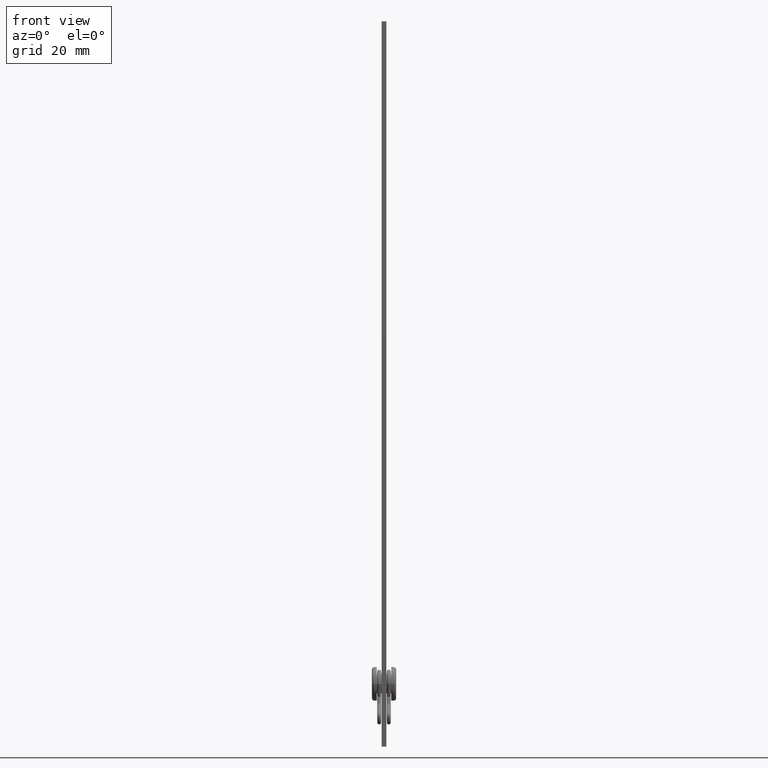
[diagram: clean part render]
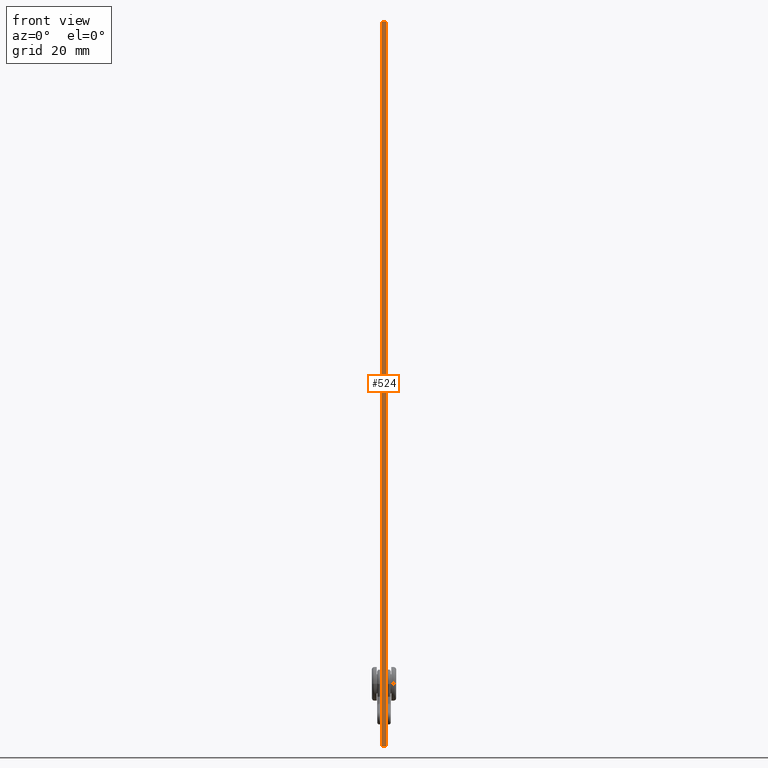
[diagram: same view with one face highlighted and labeled with its STEP entity id]
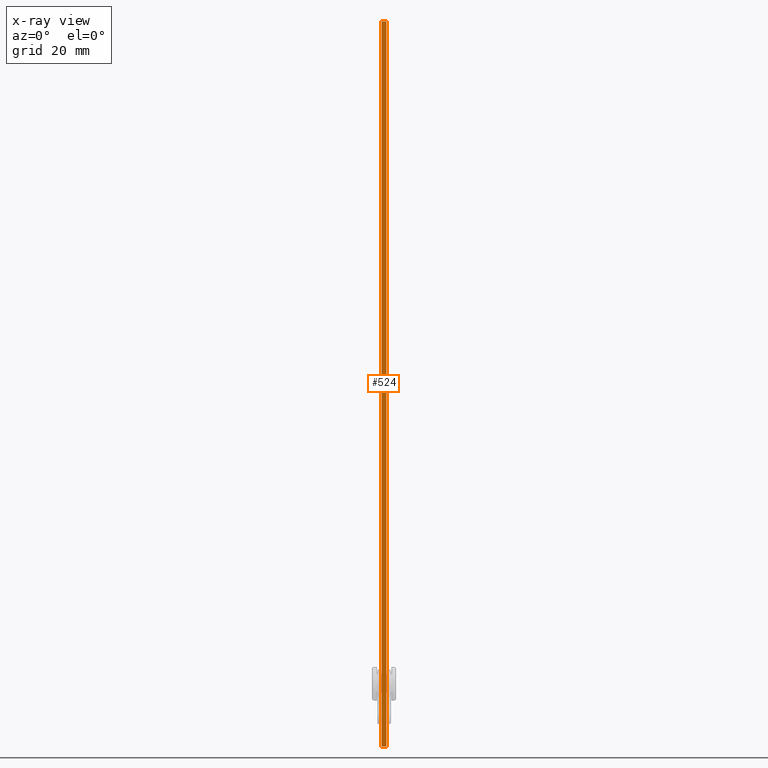
[diagram: x-ray of the same camera — body ghosted, the highlighted face saturated]
A machine part, front view. The second image highlights one B-rep face of the part: STEP entity #524.
The next image is the same camera in x-ray: the body ghosted, the highlighted face saturated — about 0% of this face is hidden behind the body in this view.
In plain terms, the highlighted planar face has unit normal (0, 1, 0).
Its self-contained STEP definition (entity closure, byte-faithful):
#79 = CARTESIAN_POINT ( 'NONE',  ( 0.5000000000000008882, -8.000000000000001776, 150.0000000000000000 ) ) ;
#394 = VERTEX_POINT ( 'NONE', #1901 ) ;
#489 = CARTESIAN_POINT ( 'NONE',  ( -0.4999999999999989453, -8.000000000000001776, 0.000000000000000000 ) ) ;
#524 = ADVANCED_FACE ( 'NONE', ( #638 ), #828, .F. ) ;
#540 = ORIENTED_EDGE ( 'NONE', *, *, #1539, .T. ) ;
#638 = FACE_OUTER_BOUND ( 'NONE', #2048, .T. ) ;
#719 = LINE ( 'NONE', #489, #2698 ) ;
#813 = CARTESIAN_POINT ( 'NONE',  ( -0.4999999999999989453, -8.000000000000001776, 150.0000000000000000 ) ) ;
#817 = CARTESIAN_POINT ( 'NONE',  ( 0.5000000000000008882, -8.000000000000001776, 150.0000000000000000 ) ) ;
#819 = VECTOR ( 'NONE', #1960, 1000.000000000000000 ) ;
#828 = PLANE ( 'NONE',  #2014 ) ;
#1062 = DIRECTION ( 'NONE',  ( 0.000000000000000000, 1.000000000000000000, 0.000000000000000000 ) ) ;
#1327 = CARTESIAN_POINT ( 'NONE',  ( -0.4999999999999989453, -8.000000000000001776, 0.000000000000000000 ) ) ;
#1355 = ORIENTED_EDGE ( 'NONE', *, *, #2989, .T. ) ;
#1419 = EDGE_CURVE ( 'NONE', #2397, #394, #2201, .T. ) ;
#1507 = ORIENTED_EDGE ( 'NONE', *, *, #1926, .F. ) ;
#1517 = LINE ( 'NONE', #813, #1673 ) ;
#1539 = EDGE_CURVE ( 'NONE', #2652, #2083, #3074, .T. ) ;
#1587 = CARTESIAN_POINT ( 'NONE',  ( -0.4999999999999989453, -8.000000000000001776, 150.0000000000000000 ) ) ;
#1673 = VECTOR ( 'NONE', #1957, 1000.000000000000000 ) ;
#1795 = CARTESIAN_POINT ( 'NONE',  ( -0.4999999999999989453, -8.000000000000001776, 150.0000000000000000 ) ) ;
#1815 = VECTOR ( 'NONE', #1833, 1000.000000000000000 ) ;
#1833 = DIRECTION ( 'NONE',  ( -0.000000000000000000, -0.000000000000000000, -1.000000000000000000 ) ) ;
#1901 = CARTESIAN_POINT ( 'NONE',  ( 0.5000000000000008882, -8.000000000000001776, 0.000000000000000000 ) ) ;
#1926 = EDGE_CURVE ( 'NONE', #2652, #2397, #1517, .T. ) ;
#1957 = DIRECTION ( 'NONE',  ( 1.000000000000000000, 0.000000000000000000, 0.000000000000000000 ) ) ;
#1960 = DIRECTION ( 'NONE',  ( -0.000000000000000000, -0.000000000000000000, -1.000000000000000000 ) ) ;
#2014 = AXIS2_PLACEMENT_3D ( 'NONE', #1795, #1062, #2562 ) ;
#2048 = EDGE_LOOP ( 'NONE', ( #1355, #2574, #1507, #540 ) ) ;
#2083 = VERTEX_POINT ( 'NONE', #1327 ) ;
#2201 = LINE ( 'NONE', #817, #819 ) ;
#2397 = VERTEX_POINT ( 'NONE', #79 ) ;
#2562 = DIRECTION ( 'NONE',  ( 0.000000000000000000, -0.000000000000000000, 1.000000000000000000 ) ) ;
#2574 = ORIENTED_EDGE ( 'NONE', *, *, #1419, .F. ) ;
#2652 = VERTEX_POINT ( 'NONE', #2951 ) ;
#2698 = VECTOR ( 'NONE', #3102, 1000.000000000000000 ) ;
#2951 = CARTESIAN_POINT ( 'NONE',  ( -0.4999999999999989453, -8.000000000000001776, 150.0000000000000000 ) ) ;
#2989 = EDGE_CURVE ( 'NONE', #2083, #394, #719, .T. ) ;
#3074 = LINE ( 'NONE', #1587, #1815 ) ;
#3102 = DIRECTION ( 'NONE',  ( 1.000000000000000000, 0.000000000000000000, 0.000000000000000000 ) ) ;